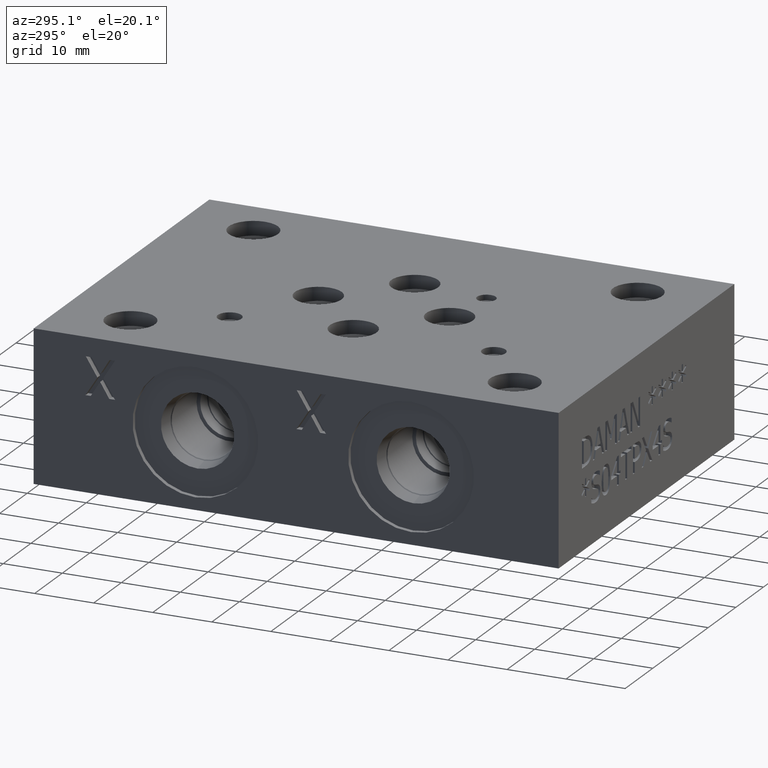
[diagram: clean part render]
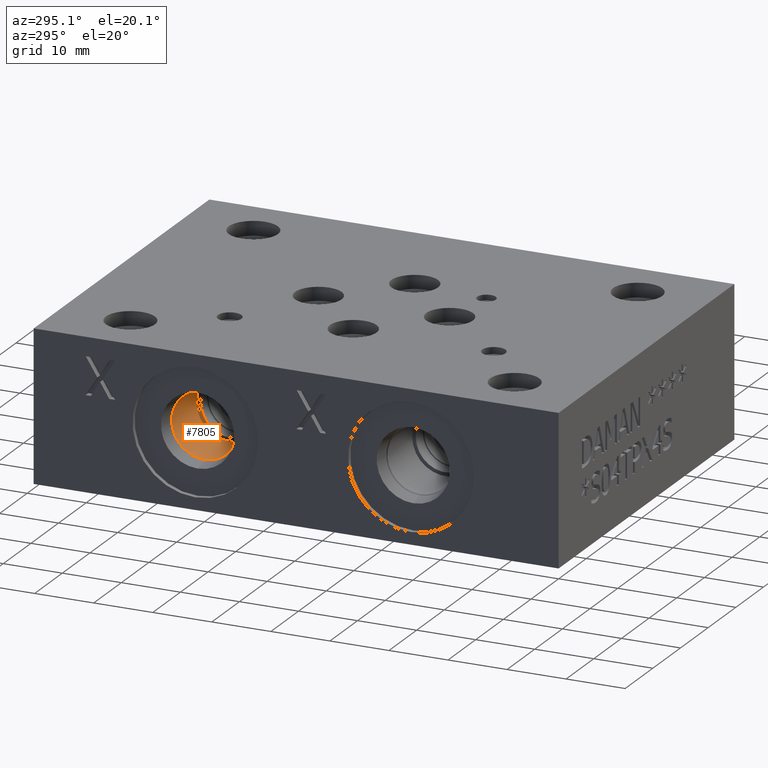
[diagram: same view with one face highlighted and labeled with its STEP entity id]
A machine part, auxiliary view. The second image highlights one B-rep face of the part: STEP entity #7805.
In plain terms, the highlighted cylindrical surface (bore or boss wall) has radius 5.5626 mm, axis along (-1, 0, 0).
Its self-contained STEP definition (entity closure, byte-faithful):
#41=CYLINDRICAL_SURFACE('',#8262,5.5626);
#156=CIRCLE('',#8259,5.5626);
#157=CIRCLE('',#8260,5.5626);
#159=CIRCLE('',#8263,5.5626);
#160=CIRCLE('',#8264,5.5626);
#813=FACE_OUTER_BOUND('',#1234,.T.);
#1234=EDGE_LOOP('',(#6708,#6709,#6710,#6711,#6712,#6713));
#2079=LINE('',#12942,#2898);
#2898=VECTOR('',#9956,5.5626);
#3628=VERTEX_POINT('',#12932);
#3629=VERTEX_POINT('',#12933);
#3631=VERTEX_POINT('',#12939);
#3632=VERTEX_POINT('',#12940);
#4683=EDGE_CURVE('',#3628,#3629,#156,.T.);
#4684=EDGE_CURVE('',#3629,#3628,#157,.T.);
#4686=EDGE_CURVE('',#3631,#3632,#159,.T.);
#4687=EDGE_CURVE('',#3631,#3629,#2079,.T.);
#4688=EDGE_CURVE('',#3632,#3631,#160,.T.);
#6708=ORIENTED_EDGE('',*,*,#4686,.F.);
#6709=ORIENTED_EDGE('',*,*,#4687,.T.);
#6710=ORIENTED_EDGE('',*,*,#4683,.F.);
#6711=ORIENTED_EDGE('',*,*,#4684,.F.);
#6712=ORIENTED_EDGE('',*,*,#4687,.F.);
#6713=ORIENTED_EDGE('',*,*,#4688,.F.);
#7805=ADVANCED_FACE('',(#813),#41,.F.);
#8259=AXIS2_PLACEMENT_3D('',#12934,#9946,#9947);
#8260=AXIS2_PLACEMENT_3D('',#12935,#9948,#9949);
#8262=AXIS2_PLACEMENT_3D('',#12938,#9952,#9953);
#8263=AXIS2_PLACEMENT_3D('',#12941,#9954,#9955);
#8264=AXIS2_PLACEMENT_3D('',#12943,#9957,#9958);
#9946=DIRECTION('center_axis',(-1.,0.,0.));
#9947=DIRECTION('ref_axis',(0.,1.,0.));
#9948=DIRECTION('center_axis',(-1.,0.,0.));
#9949=DIRECTION('ref_axis',(0.,1.,0.));
#9952=DIRECTION('center_axis',(-1.,0.,0.));
#9953=DIRECTION('ref_axis',(0.,1.,0.));
#9954=DIRECTION('center_axis',(1.,0.,0.));
#9955=DIRECTION('ref_axis',(0.,1.,0.));
#9956=DIRECTION('',(1.,0.,0.));
#9957=DIRECTION('center_axis',(1.,0.,0.));
#9958=DIRECTION('ref_axis',(0.,1.,0.));
#12932=CARTESIAN_POINT('',(12.2936,67.0814,12.7));
#12933=CARTESIAN_POINT('',(12.2936,55.9562,12.7));
#12934=CARTESIAN_POINT('Origin',(12.2936,61.5188,12.7));
#12935=CARTESIAN_POINT('Origin',(12.2936,61.5188,12.7));
#12938=CARTESIAN_POINT('Origin',(6.1468,61.5188,12.7));
#12939=CARTESIAN_POINT('',(3.30429959776786,55.9562,12.7));
#12940=CARTESIAN_POINT('',(3.30429959776786,61.5188,7.1374));
#12941=CARTESIAN_POINT('Origin',(3.30429959776786,61.5188,12.7));
#12942=CARTESIAN_POINT('',(6.1468,55.9562,12.7));
#12943=CARTESIAN_POINT('Origin',(3.30429959776786,61.5188,12.7));